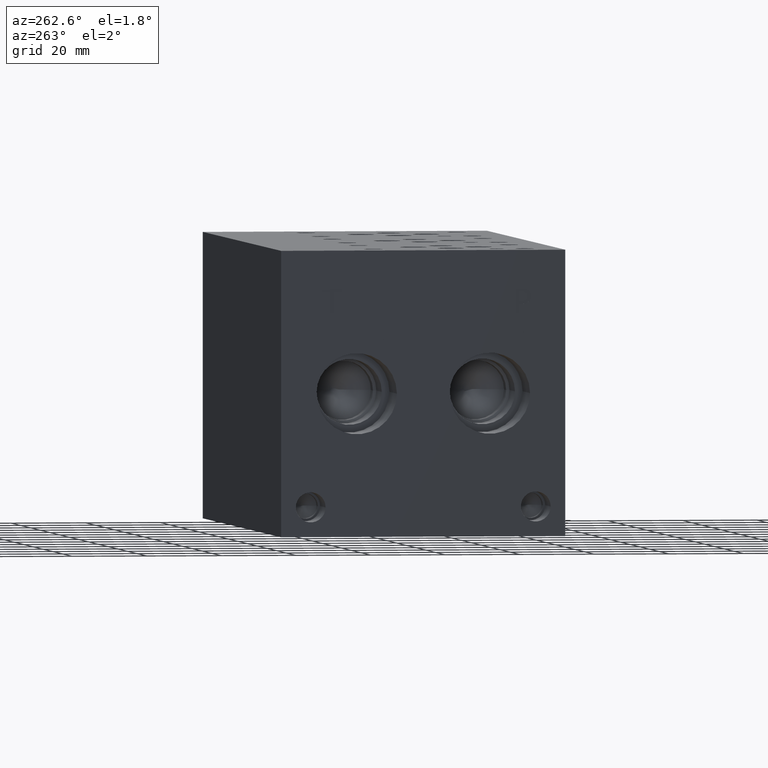
[diagram: clean part render]
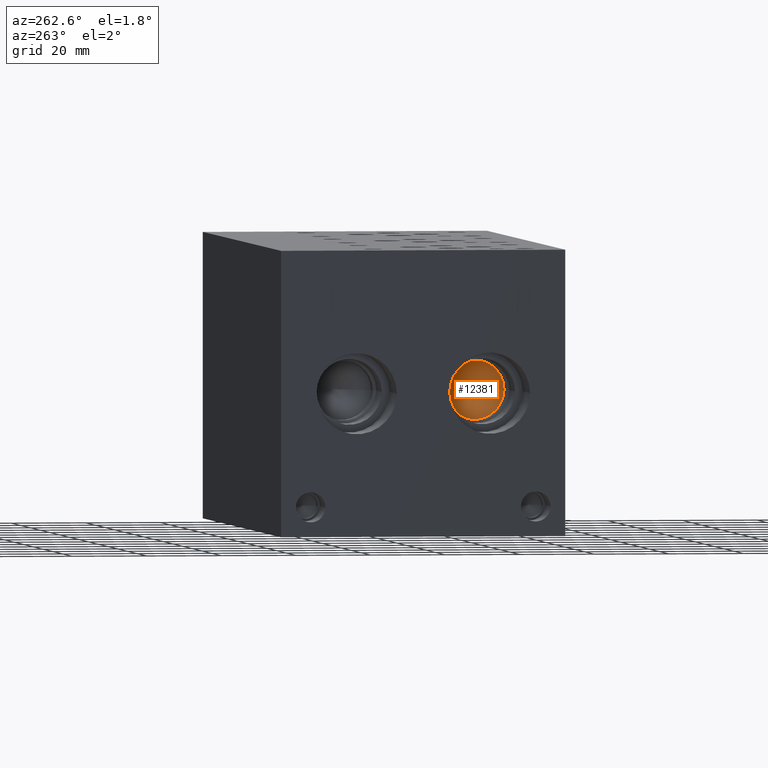
[diagram: same view with one face highlighted and labeled with its STEP entity id]
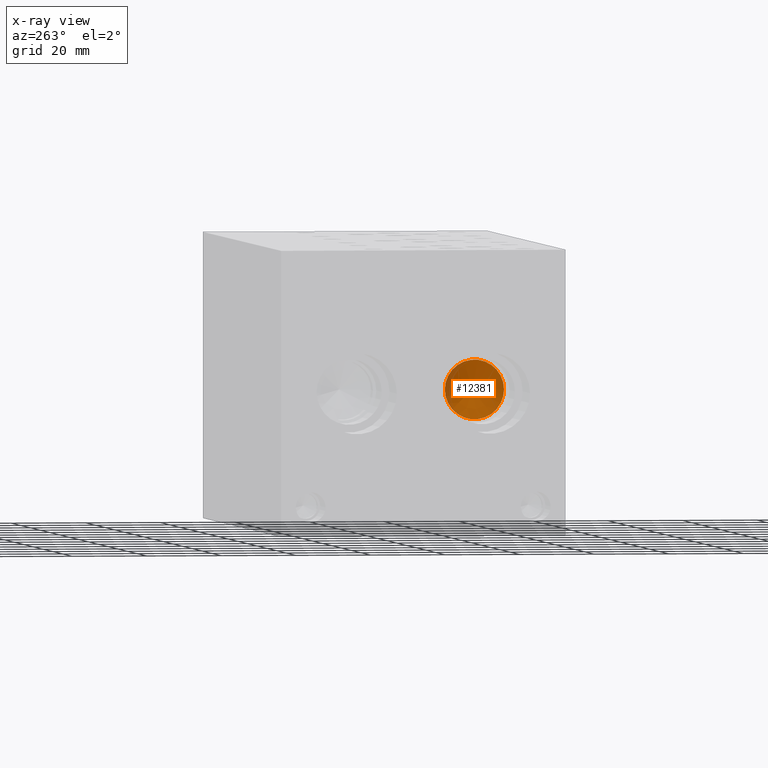
[diagram: x-ray of the same camera — body ghosted, the highlighted face saturated]
A machine part, auxiliary view. The second image highlights one B-rep face of the part: STEP entity #12381.
The next image is the same camera in x-ray: the body ghosted, the highlighted face saturated — about 7% of this face is hidden behind the body in this view.
In plain terms, the highlighted conical surface has half-angle 60 deg.
Its self-contained STEP definition (entity closure, byte-faithful):
#96=CONICAL_SURFACE('',#12945,3.96875,1.0471975511966);
#204=CIRCLE('',#12946,7.9375);
#205=CIRCLE('',#12947,7.9375);
#1392=FACE_OUTER_BOUND('',#2103,.T.);
#2103=EDGE_LOOP('',(#10607,#10608,#10609,#10610));
#3308=LINE('',#20925,#4442);
#4442=VECTOR('',#15159,3.96875);
#5836=VERTEX_POINT('',#20921);
#5837=VERTEX_POINT('',#20922);
#5838=VERTEX_POINT('',#20924);
#7496=EDGE_CURVE('',#5836,#5837,#204,.T.);
#7497=EDGE_CURVE('',#5837,#5838,#3308,.T.);
#7498=EDGE_CURVE('',#5837,#5836,#205,.T.);
#10607=ORIENTED_EDGE('',*,*,#7496,.T.);
#10608=ORIENTED_EDGE('',*,*,#7497,.T.);
#10609=ORIENTED_EDGE('',*,*,#7497,.F.);
#10610=ORIENTED_EDGE('',*,*,#7498,.T.);
#12381=ADVANCED_FACE('',(#1392),#96,.F.);
#12945=AXIS2_PLACEMENT_3D('',#20920,#15155,#15156);
#12946=AXIS2_PLACEMENT_3D('',#20923,#15157,#15158);
#12947=AXIS2_PLACEMENT_3D('',#20926,#15160,#15161);
#15155=DIRECTION('center_axis',(-1.,0.,0.));
#15156=DIRECTION('ref_axis',(0.,1.,0.));
#15157=DIRECTION('center_axis',(-1.,0.,0.));
#15158=DIRECTION('ref_axis',(0.,1.,0.));
#15159=DIRECTION('',(0.5,0.866025403784439,-1.06057523872491E-16));
#15160=DIRECTION('center_axis',(-1.,0.,0.));
#15161=DIRECTION('ref_axis',(0.,1.,0.));
#20920=CARTESIAN_POINT('Origin',(34.0314188808463,20.2438,38.1));
#20921=CARTESIAN_POINT('',(31.74006,28.1813,38.1));
#20922=CARTESIAN_POINT('',(31.74006,12.3063,38.1));
#20923=CARTESIAN_POINT('Origin',(31.74006,20.2438,38.1));
#20924=CARTESIAN_POINT('',(36.3227777616927,20.2438,38.1));
#20925=CARTESIAN_POINT('',(34.0314188808463,16.27505,38.1));
#20926=CARTESIAN_POINT('Origin',(31.74006,20.2438,38.1));